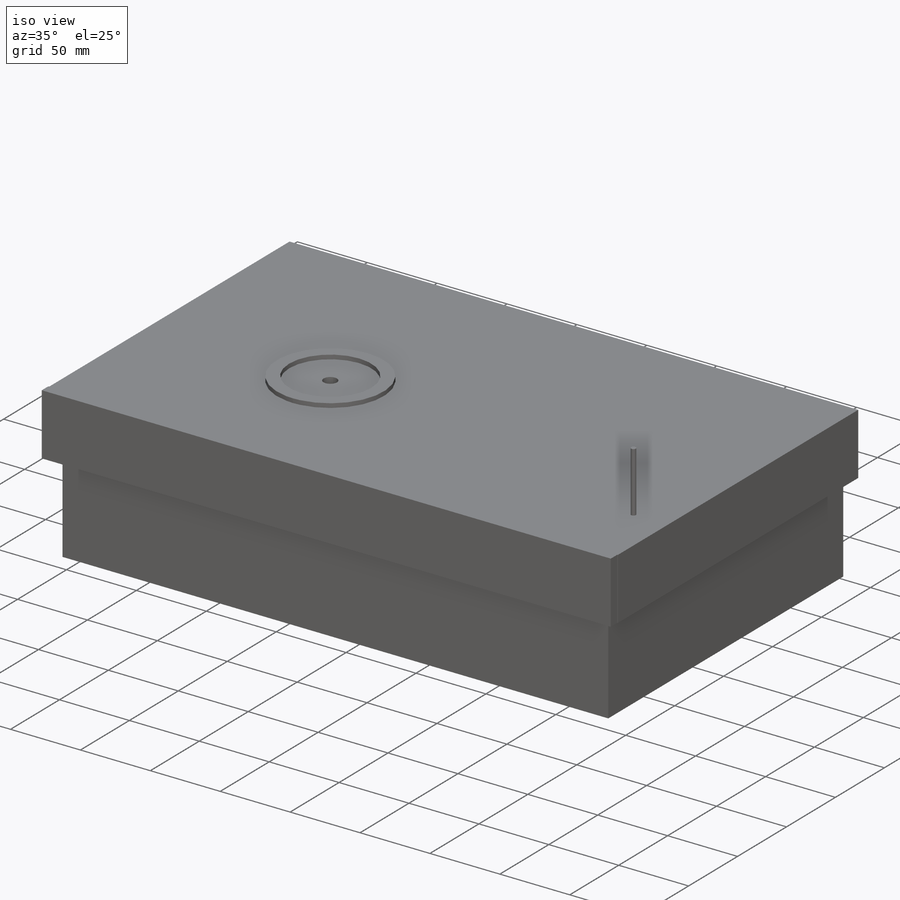
[diagram: iso view]
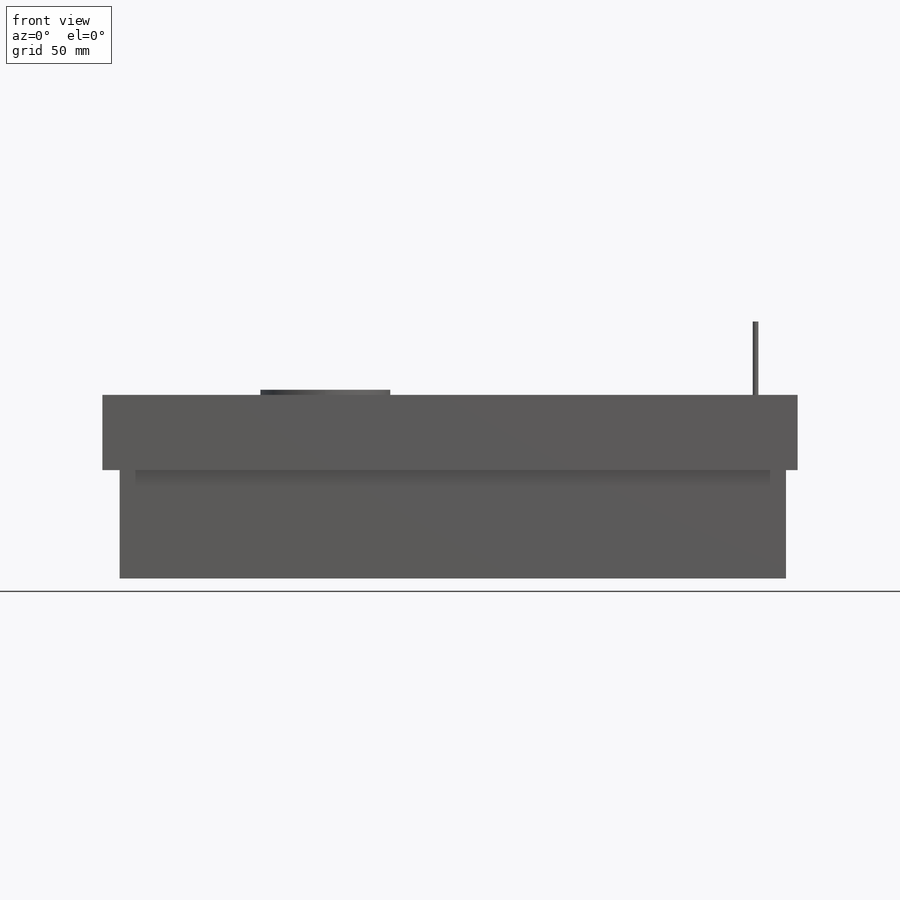
[diagram: front view]
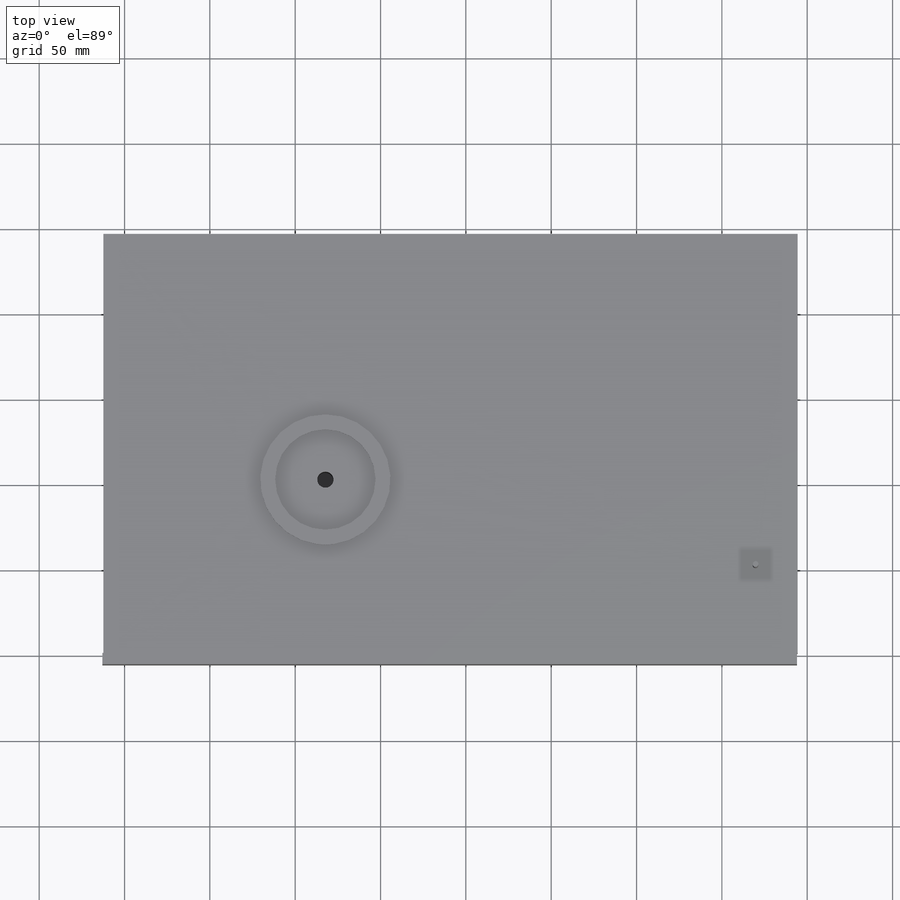
[diagram: top view]
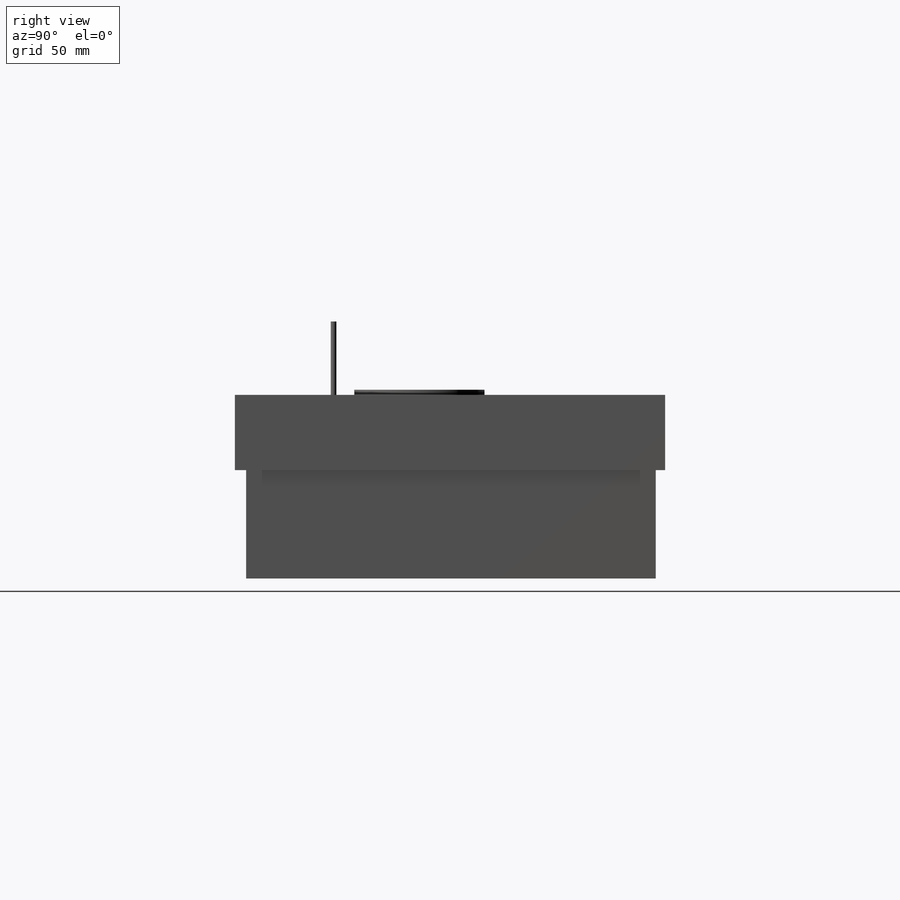
[diagram: right view]
SOLIDWORKS PART (.sldprt)
format: sldprt  version: not decoded by parser v0  size: 227,840 bytes
history: native  units: mm
features: sketch x8, extrude x6, plane x3, cut_extrude x2, material x1 (+8 scaffold rows collapsed)
feature tree (28):
  scaffold x8  (default folders/planes/origin — collapsed)
  material  "Material <sin especificar>"
  plane  "Alzado"
  plane  "Planta"
  plane  "Vista lateral"
  sketch  "Croquis1"  dims[c1.D1=270.0mm c1.D2=240.0mm c2.D1=116.5mm]
  extrude  "Saliente-Extruir1"  Depth=30mm
  sketch  "Croquis2"
  extrude  "Saliente-Extruir3"  Depth=63.5mm
  sketch  "Croquis3"
  extrude  "Saliente-Extruir4"  Depth=245.5mm
  sketch  "Croquis4"  dims[D1=130.0mm D2=122.75mm]
  extrude  "Saliente-Extruir5"  Depth=3mm
  sketch  "Croquis5"  dims[D1=9.529mm]
  cut_extrude  "Cortar-Extruir1"  Depth=142mm
  sketch  "Croquis6"
  extrude  "Saliente-Extruir6"  Depth=294mm
  sketch  "Croquis7"  dims[D1=3.302mm]
  extrude  "Saliente-Extruir8"  Depth=112mm
  sketch  "Croquis8"
  cut_extrude  "Cortar-Extruir2"  Depth=112mm
decode coverage: 12 of 16 modeling features carry decoded parameters
note: suppression state not decoded; provenance and decode notes live in map.json
